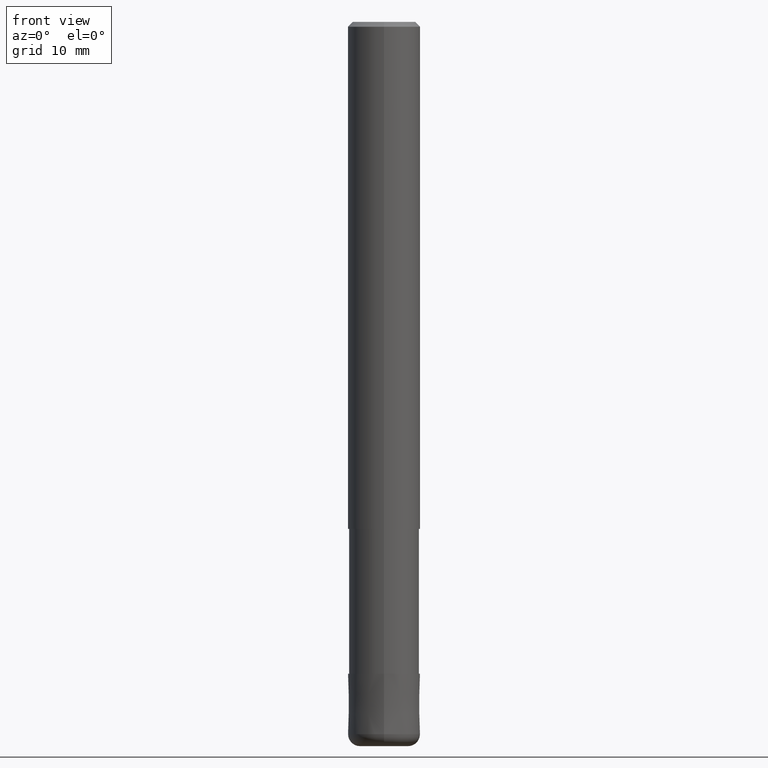
[diagram: clean part render]
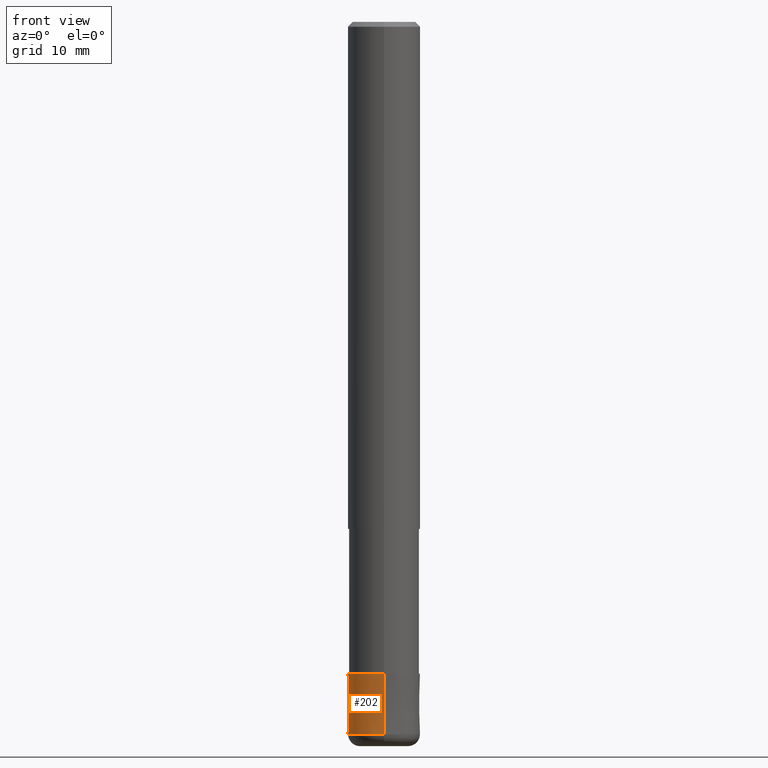
[diagram: same view with one face highlighted and labeled with its STEP entity id]
A machine part, front view. The second image highlights one B-rep face of the part: STEP entity #202.
In plain terms, the highlighted conical surface has half-angle 0.001 deg.
Its self-contained STEP definition (entity closure, byte-faithful):
#98=VERTEX_POINT('',#238);
#102=EDGE_CURVE('',#98,#134,#242,.T.);
#112=EDGE_CURVE('',#134,#156,#255,.T.);
#130=VERTEX_POINT('',#274);
#134=VERTEX_POINT('',#278);
#156=VERTEX_POINT('',#303);
#190=EDGE_CURVE('',#130,#156,#342,.T.);
#192=EDGE_CURVE('',#130,#98,#344,.T.);
#202=ADVANCED_FACE('',(#354),#355,.T.);
#238=CARTESIAN_POINT('',(3.67369660083175E-016,-2.9999,-54.0));
#242=CIRCLE('',#389,2.9999);
#255=LINE('',#404,#405);
#274=CARTESIAN_POINT('',(3.67381906146713E-016,-3.0,-59.0));
#278=CARTESIAN_POINT('',(0.0,2.9999,-54.0));
#303=CARTESIAN_POINT('',(0.0,3.0,-59.0));
#342=CIRCLE('',#510,3.0);
#344=LINE('',#513,#514);
#354=FACE_OUTER_BOUND('',#530,.T.);
#355=CONICAL_SURFACE('',#531,2.99995,1.99999999973755E-005);
#389=AXIS2_PLACEMENT_3D('',#559,#560,#561);
#404=CARTESIAN_POINT('',(-3.67375783114944E-016,2.99995,-56.5));
#405=VECTOR('',#589,1.0);
#510=AXIS2_PLACEMENT_3D('',#693,#694,#695);
#513=CARTESIAN_POINT('',(3.67375783114944E-016,-2.99995,-56.5));
#514=VECTOR('',#696,1.0);
#530=EDGE_LOOP('',(#706,#707,#708,#709));
#531=AXIS2_PLACEMENT_3D('',#710,#711,#712);
#559=CARTESIAN_POINT('',(0.0,0.0,-54.0));
#560=DIRECTION('',(0.0,0.0,-1.0));
#561=DIRECTION('',(0.0,1.0,0.0));
#589=DIRECTION('',(-2.44921270716008E-021,1.99999999960422E-005,-0.9999999998));
#693=CARTESIAN_POINT('',(0.0,0.0,-59.0));
#694=DIRECTION('',(0.0,0.0,-1.0));
#695=DIRECTION('',(0.0,1.0,0.0));
#696=DIRECTION('',(-2.44921270716008E-021,1.99999999960422E-005,0.9999999998));
#706=ORIENTED_EDGE('',*,*,#112,.T.);
#707=ORIENTED_EDGE('',*,*,#190,.F.);
#708=ORIENTED_EDGE('',*,*,#192,.T.);
#709=ORIENTED_EDGE('',*,*,#102,.T.);
#710=CARTESIAN_POINT('',(0.0,0.0,-56.5));
#711=DIRECTION('',(0.0,-0.0,-1.0));
#712=DIRECTION('',(0.0,1.0,0.0));